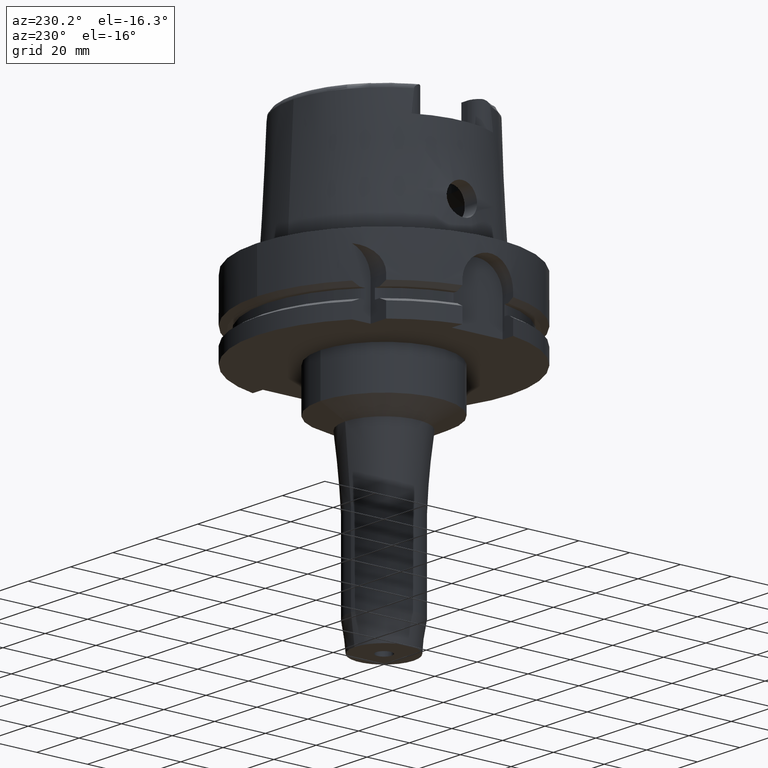
[diagram: clean part render]
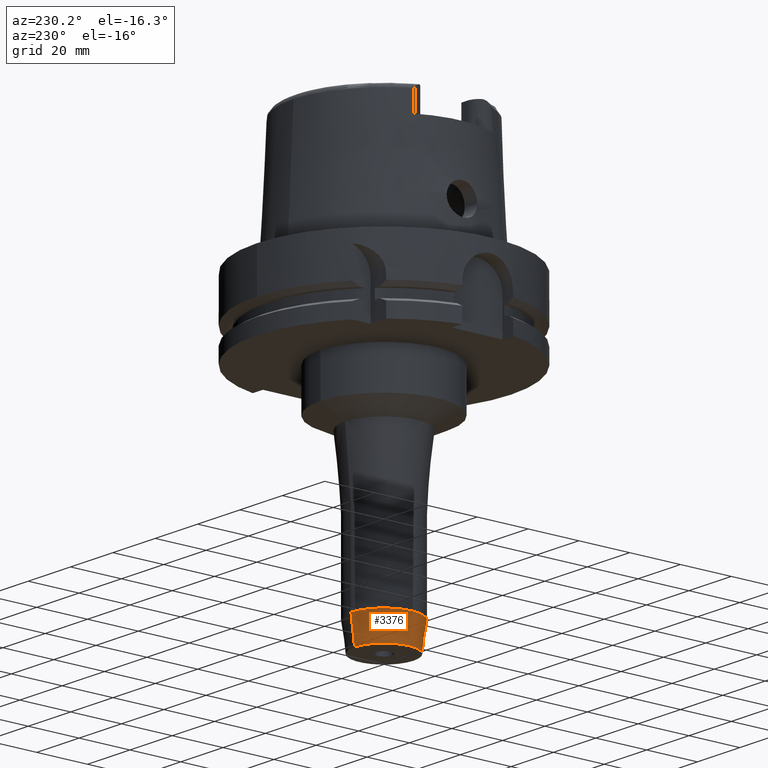
[diagram: same view with one face highlighted and labeled with its STEP entity id]
A machine part, auxiliary view. The second image highlights one B-rep face of the part: STEP entity #3376.
In plain terms, the highlighted conical surface has half-angle 7.5 deg.
Its self-contained STEP definition (entity closure, byte-faithful):
#1071=CARTESIAN_POINT('',(0.E0,0.E0,-1.2E2));
#1072=DIRECTION('',(0.E0,0.E0,1.E0));
#1073=DIRECTION('',(0.E0,1.E0,0.E0));
#1074=AXIS2_PLACEMENT_3D('',#1071,#1072,#1073);
#1095=DIRECTION('',(0.E0,-1.305261922198E-1,-9.914448613738E-1));
#1096=VECTOR('',#1095,1.075646179609E1);
#1097=CARTESIAN_POINT('',(0.E0,1.3E1,-1.093355612257E2));
#1098=LINE('',#1097,#1096);
#1110=CARTESIAN_POINT('',(0.E0,0.E0,-1.093355612257E2));
#1111=DIRECTION('',(0.E0,0.E0,1.E0));
#1112=DIRECTION('',(0.E0,1.E0,0.E0));
#1113=AXIS2_PLACEMENT_3D('',#1110,#1111,#1112);
#1118=DIRECTION('',(0.E0,1.305261922198E-1,-9.914448613738E-1));
#1119=VECTOR('',#1118,1.075646179609E1);
#1120=CARTESIAN_POINT('',(0.E0,-1.3E1,-1.093355612257E2));
#1121=LINE('',#1120,#1119);
#2410=CARTESIAN_POINT('',(0.E0,-1.1596E1,-1.2E2));
#2411=CARTESIAN_POINT('',(0.E0,1.1596E1,-1.2E2));
#2412=VERTEX_POINT('',#2410);
#2413=VERTEX_POINT('',#2411);
#2414=CARTESIAN_POINT('',(0.E0,1.3E1,-1.093355612257E2));
#2415=VERTEX_POINT('',#2414);
#2416=CARTESIAN_POINT('',(0.E0,-1.3E1,-1.093355612257E2));
#2417=VERTEX_POINT('',#2416);
#3364=CARTESIAN_POINT('',(0.E0,0.E0,-1.146677806129E2));
#3365=DIRECTION('',(0.E0,0.E0,1.E0));
#3366=DIRECTION('',(0.E0,1.E0,0.E0));
#3367=AXIS2_PLACEMENT_3D('',#3364,#3365,#3366);
#3368=CONICAL_SURFACE('',#3367,1.229800000001E1,7.5E0);
#3369=ORIENTED_EDGE('',*,*,#3354,.F.);
#3371=ORIENTED_EDGE('',*,*,#3370,.T.);
#3372=ORIENTED_EDGE('',*,*,#3357,.T.);
#3373=ORIENTED_EDGE('',*,*,#3340,.F.);
#3374=EDGE_LOOP('',(#3369,#3371,#3372,#3373));
#3375=FACE_OUTER_BOUND('',#3374,.F.);
#1075=CIRCLE('',#1074,1.1596E1);
#1114=CIRCLE('',#1113,1.300000000001E1);
#3340=EDGE_CURVE('',#2413,#2412,#1075,.T.);
#3354=EDGE_CURVE('',#2415,#2413,#1098,.T.);
#3357=EDGE_CURVE('',#2417,#2412,#1121,.T.);
#3370=EDGE_CURVE('',#2415,#2417,#1114,.T.);
#3376=ADVANCED_FACE('',(#3375),#3368,.T.);